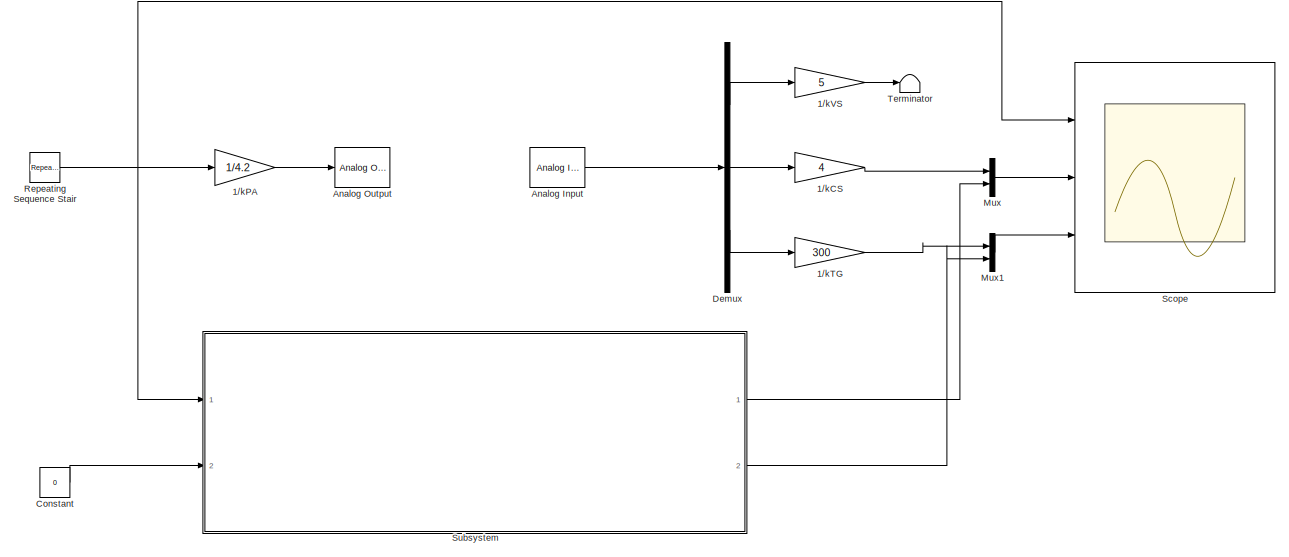
[diagram: root canvas - part 1/2, most of the canvas]
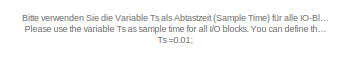
[diagram: root canvas - part 2/2, bottom left region]
MODEL slx_0f22621ddfc6
KIND model
CONFIG AbsTol = auto
CONFIG EnableMultiTasking = on
CONFIG FixedStep = auto
CONFIG MaxStep = auto
CONFIG MinStep = auto
CONFIG RelTol = 1e-3
CONFIG SampleTimeConstraint = Unconstrained
CONFIG SolverName = ode45
CONFIG StartTime = 0.0
CONFIG StopTime = 10.0
BLOCK [Gain] 1//kCS
  Gain = 4
BLOCK [Gain] 1//kPA
  Gain = 1/4.2
BLOCK [Gain] 1//kTG
  Gain = 300
BLOCK [Gain] 1//kVS
  Gain = 5
BLOCK [Reference] Analog Input  REF=sldrtlib/Analog Input
  AttributesFormatString = National Instruments\nPCIe-6321 [auto]
  Ports = [0, 1]
  SourceBlock = sldrtlib/Analog Input
  SourceType = Simulink Desktop Real-Time Analog Input
BLOCK [Reference] Analog Output  REF=sldrtlib/Analog Output
  AttributesFormatString = National Instruments\nPCIe-6321 [auto]
  Ports = [1]
  SourceBlock = sldrtlib/Analog Output
  SourceType = Simulink Desktop Real-Time Analog Output
BLOCK [Constant] Constant
  Value = 0
BLOCK [Demux] Demux
  Outputs = 3
  Ports = [1, 3]
BLOCK [Mux] Mux
  DisplayOption = bar
  Inputs = 2
  Ports = [2, 1]
BLOCK [Mux] Mux1
  DisplayOption = bar
  Inputs = 2
  Ports = [2, 1]
BLOCK [Reference] Repeating Sequence Stair  REF=simulink/Sources/Repeating
Sequence
Stair
  Ports = [0, 1]
  SourceBlock = simulink/Sources/Repeating\nSequence\nStair
  SourceType = Repeating Sequence Stair
BLOCK [Scope] Scope
  Floating = off
  NumInputPorts = 3
  Ports = [3]
  ScopeSpecificationString = Simulink.scopes.TimeScopeBlockCfg('CurrentConfiguration', extmgr.ConfigurationSet(extmgr.Configuration('Core','General UI',true),extmgr.Configuration('Core','Source UI',true),extmgr.Configuration('Sources','WiredSimulink',true,'DataLoggingVariableName','D','DataLogging',true,'DataLoggingSaveFormat','StructureWithTime'),extmgr.Configuration('Visuals','Time Domain',true,'SerializedDisplays',{struct(...<+2769ch>
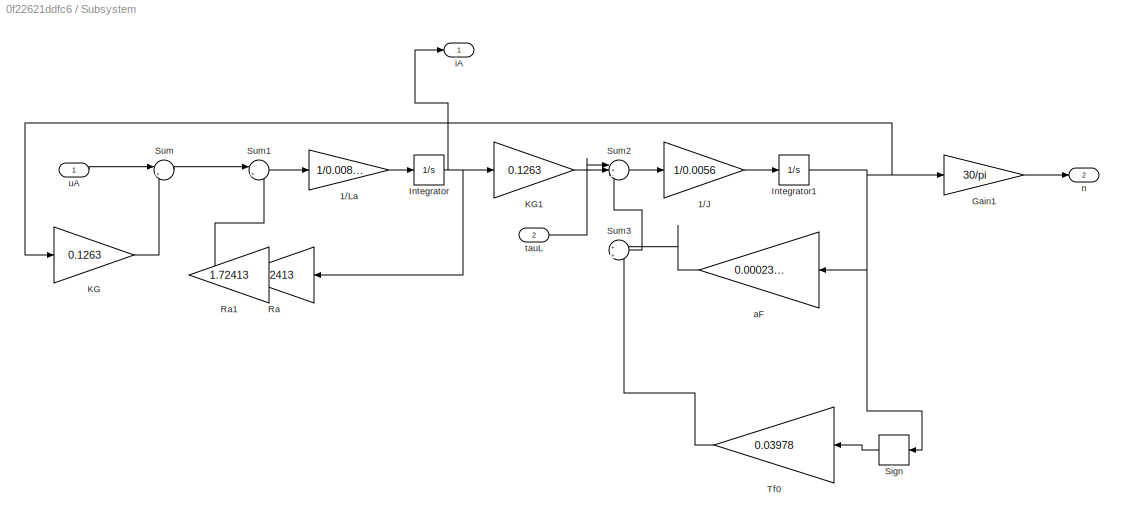
BLOCK [SubSystem] Subsystem
  Ports = [2, 2]
BLOCK [Gain] Subsystem/1//J
  Gain = 1/0.0056
BLOCK [Gain] Subsystem/1//La
  Gain = 1/0.00862
BLOCK [Gain] Subsystem/Gain1
  Gain = 30/pi
BLOCK [Integrator] Subsystem/Integrator
  Ports = [1, 1]
BLOCK [Integrator] Subsystem/Integrator1
  Ports = [1, 1]
BLOCK [Gain] Subsystem/KG
  Gain = 0.1263
BLOCK [Gain] Subsystem/KG1
  Gain = 0.1263
BLOCK [Gain] Subsystem/Ra
  Gain = 1.72413
  NameLocation = top
BLOCK [Gain] Subsystem/Ra1
  Gain = 1.72413
  NameLocation = top
BLOCK [Signum] Subsystem/Sign
  NameLocation = top
BLOCK [Sum] Subsystem/Sum
  Inputs = |+-
  Ports = [2, 1]
BLOCK [Sum] Subsystem/Sum1
  Inputs = |+-
  Ports = [2, 1]
BLOCK [Sum] Subsystem/Sum2
  Inputs = |+--
  Ports = [3, 1]
BLOCK [Sum] Subsystem/Sum3
  Inputs = +|+
  Ports = [2, 1]
BLOCK [Gain] Subsystem/Tf0
  Gain = 0.03978
  NameLocation = top
BLOCK [Gain] Subsystem/aF
  Gain = 0.0002377
  NameLocation = top
BLOCK [Outport] Subsystem/iA
BLOCK [Outport] Subsystem/n
  Port = 2
BLOCK [Inport] Subsystem/tauL
  Port = 2
BLOCK [Inport] Subsystem/uA
BLOCK [Terminator] Terminator
ANNOTATION (root): Bitte verwenden Sie die Variable Ts als Abtastzeit (Sample Time) für alle IO-Blöcke. Definieren Sie in Matlab-Workspace die geeigenete Abtastzeit mit den folgenden Befehl: Please use the variable Ts as sample time for all I/O blocks. You can define the sample time executing the following comand in Matlab workspace: Ts =0.01;
LINE 1//kCS:1 -> Mux:1
LINE 1//kPA:1 -> Analog Output:1
LINE 1//kTG:1 -> Mux1:1
LINE 1//kVS:1 -> Terminator:1
LINE Analog Input:1 -> Demux:1
LINE Constant:1 -> Subsystem:2
LINE Demux:1 -> 1//kVS:1
LINE Demux:2 -> 1//kCS:1
LINE Demux:3 -> 1//kTG:1
LINE Mux1:1 -> Scope:3
LINE Mux:1 -> Scope:2
NET Repeating Sequence Stair:1 -> 1//kPA:1, Scope:1, Subsystem:1
LINE Subsystem/1//J:1 -> Subsystem/Integrator1:1
LINE Subsystem/1//La:1 -> Subsystem/Integrator:1
LINE Subsystem/Gain1:1 -> Subsystem/n:1
NET Subsystem/Integrator1:1 -> Subsystem/Gain1:1, Subsystem/KG:1, Subsystem/Sign:1, Subsystem/aF:1
NET Subsystem/Integrator:1 -> Subsystem/KG1:1, Subsystem/Ra:1, Subsystem/iA:1
LINE Subsystem/KG1:1 -> Subsystem/Sum2:1
LINE Subsystem/KG:1 -> Subsystem/Sum:2
LINE Subsystem/Ra:1 -> Subsystem/Sum1:2
LINE Subsystem/Sign:1 -> Subsystem/Tf0:1
LINE Subsystem/Sum1:1 -> Subsystem/1//La:1
LINE Subsystem/Sum2:1 -> Subsystem/1//J:1
LINE Subsystem/Sum3:1 -> Subsystem/Sum2:3
LINE Subsystem/Sum:1 -> Subsystem/Sum1:1
LINE Subsystem/Tf0:1 -> Subsystem/Sum3:2
LINE Subsystem/aF:1 -> Subsystem/Sum3:1
LINE Subsystem/tauL:1 -> Subsystem/Sum2:2
LINE Subsystem/uA:1 -> Subsystem/Sum:1
LINE Subsystem:1 -> Mux:2
LINE Subsystem:2 -> Mux1:2
note: NET lines group one-source signal fan-out (src -> all destinations, sorted); 1:1 wires keep LINE
